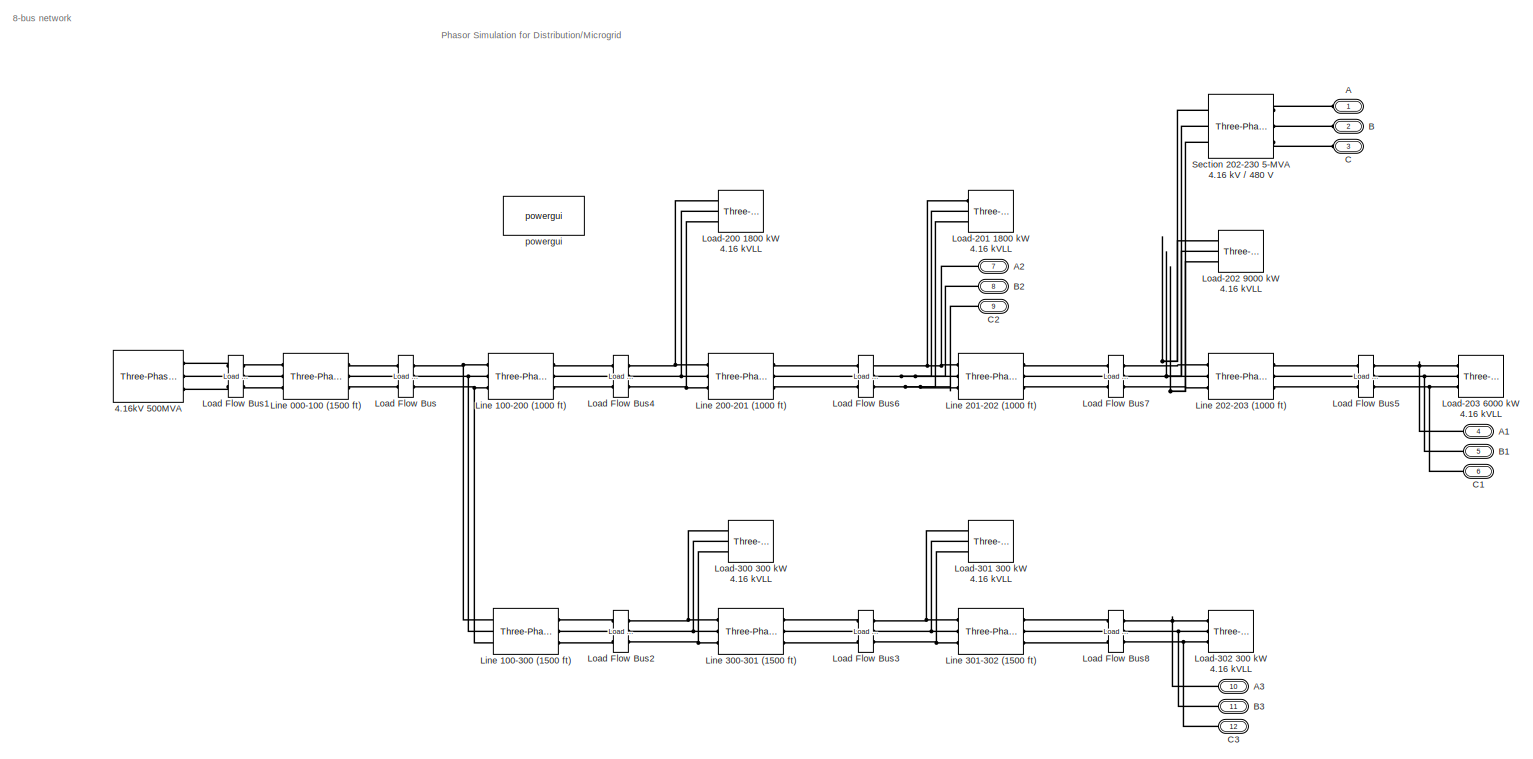
[diagram: root canvas - part 1/1, most of the canvas]
MODEL slx_17dbda5d4fc4
KIND model
CONFIG AbsTol = auto
CONFIG EnableMultiTasking = off
CONFIG FixedStep = auto
CONFIG MaxStep = auto
CONFIG MinStep = auto
CONFIG RelTol = 1e-3
CONFIG SampleTimeConstraint = Unconstrained
CONFIG SolverName = VariableStepAuto
CONFIG StartTime = 0.0
CONFIG StopTime = 10.0
BLOCK [Reference] 4.16kV 500MVA  REF=spsThreePhaseSourceLib/Three-Phase Source
  Ports = [0, 0, 0, 0, 0, 0, 3]
  SourceBlock = spsThreePhaseSourceLib/Three-Phase Source
  SourceProductBaseCode = PS
  SourceType = Three-Phase Source
BLOCK [PMIOPort] A
  NameLocation = right
  Side = Left
BLOCK [PMIOPort] A1
  NameLocation = right
  Port = 4
  Side = Left
BLOCK [PMIOPort] A2
  NameLocation = right
  Port = 7
  Side = Left
BLOCK [PMIOPort] A3
  NameLocation = right
  Port = 10
  Side = Left
BLOCK [PMIOPort] B
  NameLocation = right
  Port = 2
  Side = Left
BLOCK [PMIOPort] B1
  NameLocation = right
  Port = 5
  Side = Left
BLOCK [PMIOPort] B2
  NameLocation = right
  Port = 8
  Side = Left
BLOCK [PMIOPort] B3
  NameLocation = right
  Port = 11
  Side = Left
BLOCK [PMIOPort] C
  NameLocation = right
  Port = 3
  Side = Left
BLOCK [PMIOPort] C1
  NameLocation = right
  Port = 6
  Side = Left
BLOCK [PMIOPort] C2
  NameLocation = right
  Port = 9
  Side = Left
BLOCK [PMIOPort] C3
  NameLocation = right
  Port = 12
  Side = Left
BLOCK [Reference] Line 000-100 (1500 ft)  REF=spsThreePhasePISectionLineLib/Three-Phase
PI Section Line
  AttributesFormatString = \n
  Ports = [0, 0, 0, 0, 0, 3, 3]
  SourceBlock = spsThreePhasePISectionLineLib/Three-Phase\nPI Section Line
  SourceProductBaseCode = PS
  SourceType = Three-Phase PI Section Line
BLOCK [Reference] Line 100-200 (1000 ft)  REF=spsThreePhasePISectionLineLib/Three-Phase
PI Section Line
  AttributesFormatString = \n
  Ports = [0, 0, 0, 0, 0, 3, 3]
  SourceBlock = spsThreePhasePISectionLineLib/Three-Phase\nPI Section Line
  SourceProductBaseCode = PS
  SourceType = Three-Phase PI Section Line
BLOCK [Reference] Line 100-300 (1500 ft)  REF=spsThreePhasePISectionLineLib/Three-Phase
PI Section Line
  AttributesFormatString = \n
  Ports = [0, 0, 0, 0, 0, 3, 3]
  SourceBlock = spsThreePhasePISectionLineLib/Three-Phase\nPI Section Line
  SourceProductBaseCode = PS
  SourceType = Three-Phase PI Section Line
BLOCK [Reference] Line 200-201 (1000 ft)  REF=spsThreePhasePISectionLineLib/Three-Phase
PI Section Line
  AttributesFormatString = \n
  Ports = [0, 0, 0, 0, 0, 3, 3]
  SourceBlock = spsThreePhasePISectionLineLib/Three-Phase\nPI Section Line
  SourceProductBaseCode = PS
  SourceType = Three-Phase PI Section Line
BLOCK [Reference] Line 201-202 (1000 ft)  REF=spsThreePhasePISectionLineLib/Three-Phase
PI Section Line
  AttributesFormatString = \n
  Ports = [0, 0, 0, 0, 0, 3, 3]
  SourceBlock = spsThreePhasePISectionLineLib/Three-Phase\nPI Section Line
  SourceProductBaseCode = PS
  SourceType = Three-Phase PI Section Line
BLOCK [Reference] Line 202-203 (1000 ft)  REF=spsThreePhasePISectionLineLib/Three-Phase
PI Section Line
  AttributesFormatString = \n
  Ports = [0, 0, 0, 0, 0, 3, 3]
  SourceBlock = spsThreePhasePISectionLineLib/Three-Phase\nPI Section Line
  SourceProductBaseCode = PS
  SourceType = Three-Phase PI Section Line
BLOCK [Reference] Line 300-301 (1500 ft)  REF=spsThreePhasePISectionLineLib/Three-Phase
PI Section Line
  AttributesFormatString = \n
  Ports = [0, 0, 0, 0, 0, 3, 3]
  SourceBlock = spsThreePhasePISectionLineLib/Three-Phase\nPI Section Line
  SourceProductBaseCode = PS
  SourceType = Three-Phase PI Section Line
BLOCK [Reference] Line 301-302 (1500 ft)  REF=spsThreePhasePISectionLineLib/Three-Phase
PI Section Line
  AttributesFormatString = \n
  Ports = [0, 0, 0, 0, 0, 3, 3]
  SourceBlock = spsThreePhasePISectionLineLib/Three-Phase\nPI Section Line
  SourceProductBaseCode = PS
  SourceType = Three-Phase PI Section Line
BLOCK [Reference] Load Flow Bus  REF=spsLoadFlowBusLib/Load Flow Bus
  AttributesFormatString = %<ID>\n%<Vbase>V\n%<VLF>pu\n%<angleLF>deg.
  Ports = [0, 0, 0, 0, 0, 3, 3]
  SourceBlock = spsLoadFlowBusLib/Load Flow Bus
  SourceProductBaseCode = PS
  SourceType = Load Flow Bus
BLOCK [Reference] Load Flow Bus1  REF=spsLoadFlowBusLib/Load Flow Bus
  AttributesFormatString = %<ID>\n%<Vbase>V\n%<VLF>pu\n%<angleLF>deg.
  Ports = [0, 0, 0, 0, 0, 3, 3]
  SourceBlock = spsLoadFlowBusLib/Load Flow Bus
  SourceProductBaseCode = PS
  SourceType = Load Flow Bus
BLOCK [Reference] Load Flow Bus2  REF=spsLoadFlowBusLib/Load Flow Bus
  AttributesFormatString = %<ID>\n%<Vbase>V\n%<VLF>pu\n%<angleLF>deg.
  Ports = [0, 0, 0, 0, 0, 3, 3]
  SourceBlock = spsLoadFlowBusLib/Load Flow Bus
  SourceProductBaseCode = PS
  SourceType = Load Flow Bus
BLOCK [Reference] Load Flow Bus3  REF=spsLoadFlowBusLib/Load Flow Bus
  AttributesFormatString = %<ID>\n%<Vbase>V\n%<VLF>pu\n%<angleLF>deg.
  Ports = [0, 0, 0, 0, 0, 3, 3]
  SourceBlock = spsLoadFlowBusLib/Load Flow Bus
  SourceProductBaseCode = PS
  SourceType = Load Flow Bus
BLOCK [Reference] Load Flow Bus4  REF=spsLoadFlowBusLib/Load Flow Bus
  AttributesFormatString = %<ID>\n%<Vbase>V\n%<VLF>pu\n%<angleLF>deg.
  Ports = [0, 0, 0, 0, 0, 3, 3]
  SourceBlock = spsLoadFlowBusLib/Load Flow Bus
  SourceProductBaseCode = PS
  SourceType = Load Flow Bus
BLOCK [Reference] Load Flow Bus5  REF=spsLoadFlowBusLib/Load Flow Bus
  AttributesFormatString = %<ID>\n%<Vbase>V\n%<VLF>pu\n%<angleLF>deg.
  Ports = [0, 0, 0, 0, 0, 3, 3]
  SourceBlock = spsLoadFlowBusLib/Load Flow Bus
  SourceProductBaseCode = PS
  SourceType = Load Flow Bus
BLOCK [Reference] Load Flow Bus6  REF=spsLoadFlowBusLib/Load Flow Bus
  AttributesFormatString = %<ID>\n%<Vbase>V\n%<VLF>pu\n%<angleLF>deg.
  Ports = [0, 0, 0, 0, 0, 3, 3]
  SourceBlock = spsLoadFlowBusLib/Load Flow Bus
  SourceProductBaseCode = PS
  SourceType = Load Flow Bus
BLOCK [Reference] Load Flow Bus7  REF=spsLoadFlowBusLib/Load Flow Bus
  AttributesFormatString = %<ID>\n%<Vbase>V\n%<VLF>pu\n%<angleLF>deg.
  Ports = [0, 0, 0, 0, 0, 3, 3]
  SourceBlock = spsLoadFlowBusLib/Load Flow Bus
  SourceProductBaseCode = PS
  SourceType = Load Flow Bus
BLOCK [Reference] Load Flow Bus8  REF=spsLoadFlowBusLib/Load Flow Bus
  AttributesFormatString = %<ID>\n%<Vbase>V\n%<VLF>pu\n%<angleLF>deg.
  Ports = [0, 0, 0, 0, 0, 3, 3]
  SourceBlock = spsLoadFlowBusLib/Load Flow Bus
  SourceProductBaseCode = PS
  SourceType = Load Flow Bus
BLOCK [Reference] Load-200 1800 kW 4.16 kVLL  REF=spsThreePhaseParallelRLCLoadLib/Three-Phase
Parallel RLC Load
  AttributesFormatString = \n
  NameLocation = top
  Ports = [0, 0, 0, 0, 0, 3]
  SourceBlock = spsThreePhaseParallelRLCLoadLib/Three-Phase\nParallel RLC Load
  SourceProductBaseCode = PS
  SourceType = Three-Phase Parallel RLC Load
BLOCK [Reference] Load-201 1800 kW 4.16 kVLL  REF=spsThreePhaseParallelRLCLoadLib/Three-Phase
Parallel RLC Load
  AttributesFormatString = \n
  NameLocation = top
  Ports = [0, 0, 0, 0, 0, 3]
  SourceBlock = spsThreePhaseParallelRLCLoadLib/Three-Phase\nParallel RLC Load
  SourceProductBaseCode = PS
  SourceType = Three-Phase Parallel RLC Load
BLOCK [Reference] Load-202 9000 kW 4.16 kVLL  REF=spsThreePhaseParallelRLCLoadLib/Three-Phase
Parallel RLC Load
  AttributesFormatString = \n
  NameLocation = top
  Ports = [0, 0, 0, 0, 0, 3]
  SourceBlock = spsThreePhaseParallelRLCLoadLib/Three-Phase\nParallel RLC Load
  SourceProductBaseCode = PS
  SourceType = Three-Phase Parallel RLC Load
BLOCK [Reference] Load-203 6000 kW 4.16 kVLL  REF=spsThreePhaseParallelRLCLoadLib/Three-Phase
Parallel RLC Load
  AttributesFormatString = \n
  NameLocation = top
  Ports = [0, 0, 0, 0, 0, 3]
  SourceBlock = spsThreePhaseParallelRLCLoadLib/Three-Phase\nParallel RLC Load
  SourceProductBaseCode = PS
  SourceType = Three-Phase Parallel RLC Load
BLOCK [Reference] Load-300 300 kW 4.16 kVLL  REF=spsThreePhaseParallelRLCLoadLib/Three-Phase
Parallel RLC Load
  AttributesFormatString = \n
  NameLocation = top
  Ports = [0, 0, 0, 0, 0, 3]
  SourceBlock = spsThreePhaseParallelRLCLoadLib/Three-Phase\nParallel RLC Load
  SourceProductBaseCode = PS
  SourceType = Three-Phase Parallel RLC Load
BLOCK [Reference] Load-301 300 kW 4.16 kVLL  REF=spsThreePhaseParallelRLCLoadLib/Three-Phase
Parallel RLC Load
  AttributesFormatString = \n
  NameLocation = top
  Ports = [0, 0, 0, 0, 0, 3]
  SourceBlock = spsThreePhaseParallelRLCLoadLib/Three-Phase\nParallel RLC Load
  SourceProductBaseCode = PS
  SourceType = Three-Phase Parallel RLC Load
BLOCK [Reference] Load-302 300 kW 4.16 kVLL  REF=spsThreePhaseParallelRLCLoadLib/Three-Phase
Parallel RLC Load
  AttributesFormatString = \n
  NameLocation = top
  Ports = [0, 0, 0, 0, 0, 3]
  SourceBlock = spsThreePhaseParallelRLCLoadLib/Three-Phase\nParallel RLC Load
  SourceProductBaseCode = PS
  SourceType = Three-Phase Parallel RLC Load
BLOCK [Reference] Section 202-230 5-MVA 4.16 kV // 480 V  REF=spsThreePhaseTransformerTwoWindingsLib/Three-Phase
Transformer
(Two Windings)
  AttributesFormatString = \n
  NameLocation = top
  Ports = [0, 0, 0, 0, 0, 3, 3]
  SourceBlock = spsThreePhaseTransformerTwoWindingsLib/Three-Phase\nTransformer\n(Two Windings)
  SourceProductBaseCode = PS
  SourceType = Three-Phase Transformer (Two Windings)
BLOCK [Reference] powergui  REF=spspowerguiLib/powergui
  Ports = []
  Priority = 1
  SourceBlock = spspowerguiLib/powergui
  SourceProductBaseCode = PS
  SourceType = PSB option menu block
ANNOTATION (root): 8-bus network
ANNOTATION (root): Phasor Simulation for Distribution/Microgrid
PLINE 4.16kV 500MVA:RConn1 -- Load Flow Bus1:LConn1
PLINE 4.16kV 500MVA:RConn2 -- Load Flow Bus1:LConn2
PLINE 4.16kV 500MVA:RConn3 -- Load Flow Bus1:LConn3
PNET net1: A1:RConn1 -- Load Flow Bus5:RConn1 -- Load-203 6000 kW 4.16 kVLL:LConn1
PNET net2: A2:RConn1 -- Line 201-202 (1000 ft):LConn1 -- Load Flow Bus6:RConn1 -- Load-201 1800 kW 4.16 kVLL:LConn1
PNET net3: A3:RConn1 -- Load Flow Bus8:RConn1 -- Load-302 300 kW 4.16 kVLL:LConn1
PLINE A:RConn1 -- Section 202-230 5-MVA 4.16 kV // 480 V:RConn1
PNET net4: B1:RConn1 -- Load Flow Bus5:RConn2 -- Load-203 6000 kW 4.16 kVLL:LConn2
PNET net5: B2:RConn1 -- Line 201-202 (1000 ft):LConn2 -- Load Flow Bus6:RConn2 -- Load-201 1800 kW 4.16 kVLL:LConn2
PNET net6: B3:RConn1 -- Load Flow Bus8:RConn2 -- Load-302 300 kW 4.16 kVLL:LConn2
PLINE B:RConn1 -- Section 202-230 5-MVA 4.16 kV // 480 V:RConn2
PNET net7: C1:RConn1 -- Load Flow Bus5:RConn3 -- Load-203 6000 kW 4.16 kVLL:LConn3
PNET net8: C2:RConn1 -- Line 201-202 (1000 ft):LConn3 -- Load Flow Bus6:RConn3 -- Load-201 1800 kW 4.16 kVLL:LConn3
PNET net9: C3:RConn1 -- Load Flow Bus8:RConn3 -- Load-302 300 kW 4.16 kVLL:LConn3
PLINE C:RConn1 -- Section 202-230 5-MVA 4.16 kV // 480 V:RConn3
PLINE Line 000-100 (1500 ft):LConn1 -- Load Flow Bus1:RConn1
PLINE Line 000-100 (1500 ft):LConn2 -- Load Flow Bus1:RConn2
PLINE Line 000-100 (1500 ft):LConn3 -- Load Flow Bus1:RConn3
PLINE Line 000-100 (1500 ft):RConn1 -- Load Flow Bus:LConn1
PLINE Line 000-100 (1500 ft):RConn2 -- Load Flow Bus:LConn2
PLINE Line 000-100 (1500 ft):RConn3 -- Load Flow Bus:LConn3
PNET net10: Line 100-200 (1000 ft):LConn1 -- Line 100-300 (1500 ft):LConn1 -- Load Flow Bus:RConn1
PNET net11: Line 100-200 (1000 ft):LConn2 -- Line 100-300 (1500 ft):LConn2 -- Load Flow Bus:RConn2
PNET net12: Line 100-200 (1000 ft):LConn3 -- Line 100-300 (1500 ft):LConn3 -- Load Flow Bus:RConn3
PLINE Line 100-200 (1000 ft):RConn1 -- Load Flow Bus4:LConn1
PLINE Line 100-200 (1000 ft):RConn2 -- Load Flow Bus4:LConn2
PLINE Line 100-200 (1000 ft):RConn3 -- Load Flow Bus4:LConn3
PLINE Line 100-300 (1500 ft):RConn1 -- Load Flow Bus2:LConn1
PLINE Line 100-300 (1500 ft):RConn2 -- Load Flow Bus2:LConn2
PLINE Line 100-300 (1500 ft):RConn3 -- Load Flow Bus2:LConn3
PNET net13: Line 200-201 (1000 ft):LConn1 -- Load Flow Bus4:RConn1 -- Load-200 1800 kW 4.16 kVLL:LConn1
PNET net14: Line 200-201 (1000 ft):LConn2 -- Load Flow Bus4:RConn2 -- Load-200 1800 kW 4.16 kVLL:LConn2
PNET net15: Line 200-201 (1000 ft):LConn3 -- Load Flow Bus4:RConn3 -- Load-200 1800 kW 4.16 kVLL:LConn3
PLINE Line 200-201 (1000 ft):RConn1 -- Load Flow Bus6:LConn1
PLINE Line 200-201 (1000 ft):RConn2 -- Load Flow Bus6:LConn2
PLINE Line 200-201 (1000 ft):RConn3 -- Load Flow Bus6:LConn3
PLINE Line 201-202 (1000 ft):RConn1 -- Load Flow Bus7:LConn1
PLINE Line 201-202 (1000 ft):RConn2 -- Load Flow Bus7:LConn2
PLINE Line 201-202 (1000 ft):RConn3 -- Load Flow Bus7:LConn3
PNET net16: Line 202-203 (1000 ft):LConn1 -- Load Flow Bus7:RConn1 -- Load-202 9000 kW 4.16 kVLL:LConn1 -- Section 202-230 5-MVA 4.16 kV // 480 V:LConn1
PNET net17: Line 202-203 (1000 ft):LConn2 -- Load Flow Bus7:RConn2 -- Load-202 9000 kW 4.16 kVLL:LConn2 -- Section 202-230 5-MVA 4.16 kV // 480 V:LConn2
PNET net18: Line 202-203 (1000 ft):LConn3 -- Load Flow Bus7:RConn3 -- Load-202 9000 kW 4.16 kVLL:LConn3 -- Section 202-230 5-MVA 4.16 kV // 480 V:LConn3
PLINE Line 202-203 (1000 ft):RConn1 -- Load Flow Bus5:LConn1
PLINE Line 202-203 (1000 ft):RConn2 -- Load Flow Bus5:LConn2
PLINE Line 202-203 (1000 ft):RConn3 -- Load Flow Bus5:LConn3
PNET net19: Line 300-301 (1500 ft):LConn1 -- Load Flow Bus2:RConn1 -- Load-300 300 kW 4.16 kVLL:LConn1
PNET net20: Line 300-301 (1500 ft):LConn2 -- Load Flow Bus2:RConn2 -- Load-300 300 kW 4.16 kVLL:LConn2
PNET net21: Line 300-301 (1500 ft):LConn3 -- Load Flow Bus2:RConn3 -- Load-300 300 kW 4.16 kVLL:LConn3
PLINE Line 300-301 (1500 ft):RConn1 -- Load Flow Bus3:LConn1
PLINE Line 300-301 (1500 ft):RConn2 -- Load Flow Bus3:LConn2
PLINE Line 300-301 (1500 ft):RConn3 -- Load Flow Bus3:LConn3
PNET net22: Line 301-302 (1500 ft):LConn1 -- Load Flow Bus3:RConn1 -- Load-301 300 kW 4.16 kVLL:LConn1
PNET net23: Line 301-302 (1500 ft):LConn2 -- Load Flow Bus3:RConn2 -- Load-301 300 kW 4.16 kVLL:LConn2
PNET net24: Line 301-302 (1500 ft):LConn3 -- Load Flow Bus3:RConn3 -- Load-301 300 kW 4.16 kVLL:LConn3
PLINE Line 301-302 (1500 ft):RConn1 -- Load Flow Bus8:LConn1
PLINE Line 301-302 (1500 ft):RConn2 -- Load Flow Bus8:LConn2
PLINE Line 301-302 (1500 ft):RConn3 -- Load Flow Bus8:LConn3
note: PNET lines group multi-terminal physical nets as a canonical sorted terminal list (undirected conserving connections); 2-terminal nets keep the pairwise PLINE form
